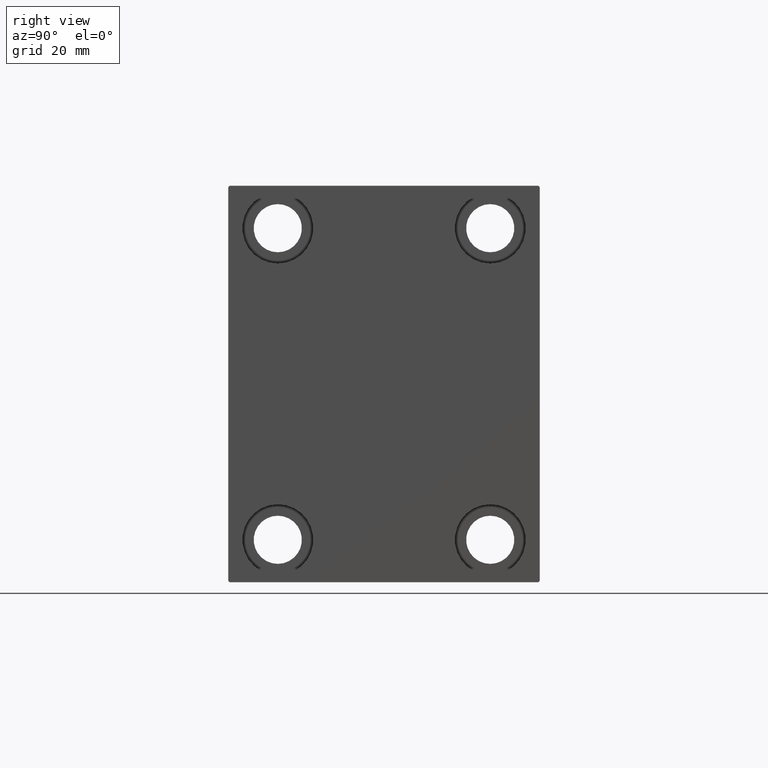
[diagram: clean part render]
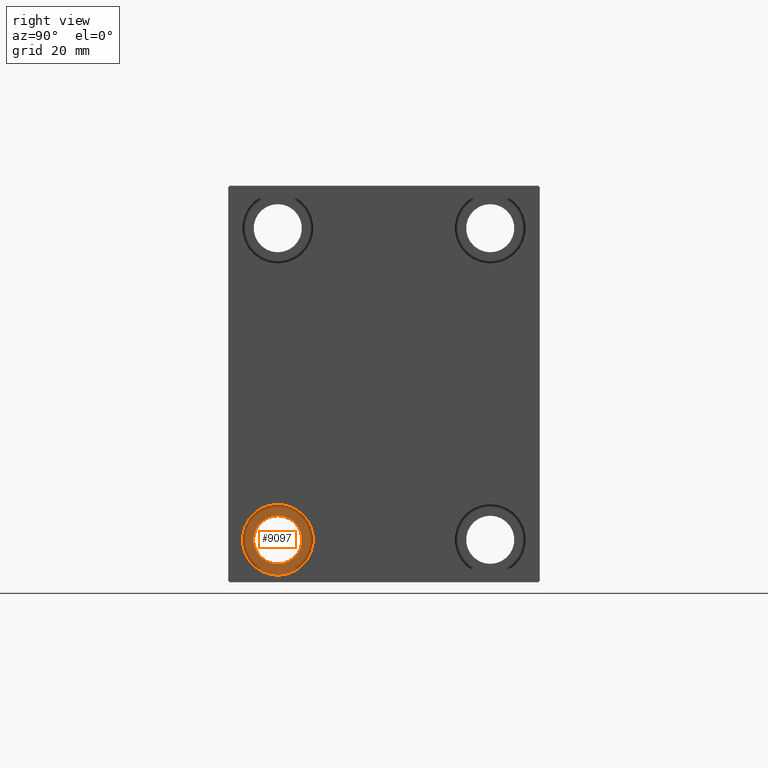
[diagram: same view with one face highlighted and labeled with its STEP entity id]
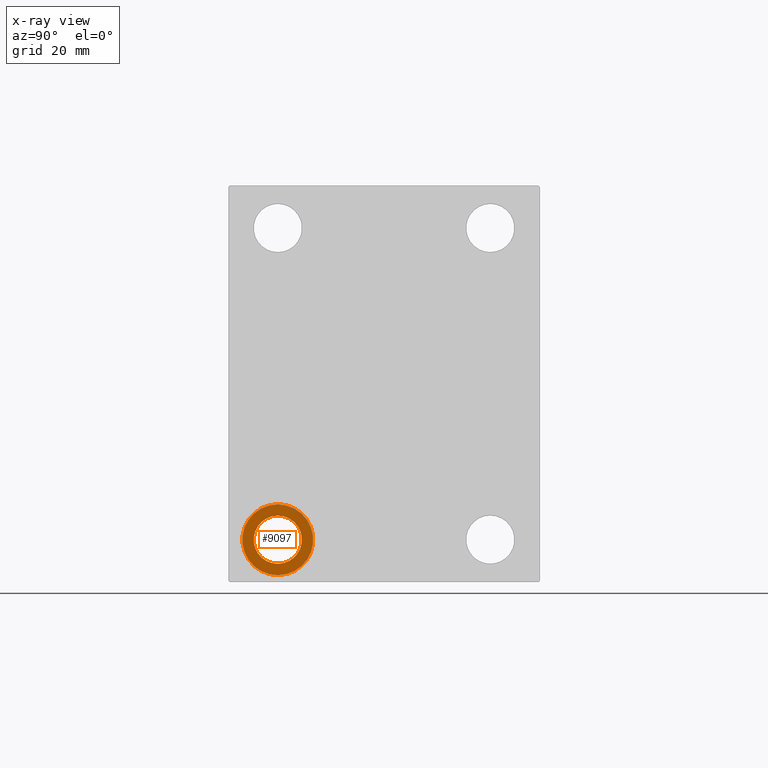
[diagram: x-ray of the same camera — body ghosted, the highlighted face saturated]
A machine part, right view. The second image highlights one B-rep face of the part: STEP entity #9097.
The next image is the same camera in x-ray: the body ghosted, the highlighted face saturated — about 0% of this face is hidden behind the body in this view.
In plain terms, the highlighted planar face has unit normal (1, 0, 0).
Its self-contained STEP definition (entity closure, byte-faithful):
#1574 = ORIENTED_EDGE ( 'NONE', *, *, #9946, .T. ) ;
#3081 = CARTESIAN_POINT ( 'NONE',  ( 155.9999999999999716, 0.000000000000000000, 0.000000000000000000 ) ) ;
#3209 = CIRCLE ( 'NONE', #5329, 8.499999999999992895 ) ;
#5024 = DIRECTION ( 'NONE',  ( 0.000000000000000000, 0.000000000000000000, -1.000000000000000000 ) ) ;
#5170 = VERTEX_POINT ( 'NONE', #38046 ) ;
#5329 = AXIS2_PLACEMENT_3D ( 'NONE', #24376, #41303, #37093 ) ;
#6526 = VERTEX_POINT ( 'NONE', #40192 ) ;
#7411 = AXIS2_PLACEMENT_3D ( 'NONE', #32230, #8159, #5024 ) ;
#8159 = DIRECTION ( 'NONE',  ( -1.000000000000000000, -0.000000000000000000, -0.000000000000000000 ) ) ;
#9097 = ADVANCED_FACE ( 'NONE', ( #36972, #20021 ), #27384, .T. ) ;
#9946 = EDGE_CURVE ( 'NONE', #5170, #29806, #18104, .T. ) ;
#10017 = ORIENTED_EDGE ( 'NONE', *, *, #35030, .F. ) ;
#11965 = EDGE_CURVE ( 'NONE', #29806, #5170, #3209, .T. ) ;
#13315 = EDGE_LOOP ( 'NONE', ( #10017, #16978 ) ) ;
#14272 = AXIS2_PLACEMENT_3D ( 'NONE', #31836, #24713, #28489 ) ;
#16664 = AXIS2_PLACEMENT_3D ( 'NONE', #3081, #40971, #24045 ) ;
#16734 = EDGE_CURVE ( 'NONE', #6526, #37740, #23976, .T. ) ;
#16978 = ORIENTED_EDGE ( 'NONE', *, *, #16734, .F. ) ;
#18104 = CIRCLE ( 'NONE', #7411, 8.499999999999992895 ) ;
#20021 = FACE_BOUND ( 'NONE', #31047, .T. ) ;
#23817 = CARTESIAN_POINT ( 'NONE',  ( 155.9999999999999716, -37.50000000000002132, -54.99999999999999289 ) ) ;
#23976 = CIRCLE ( 'NONE', #29652, 12.49999999999999645 ) ;
#24045 = DIRECTION ( 'NONE',  ( 0.000000000000000000, 0.000000000000000000, 1.000000000000000000 ) ) ;
#24376 = CARTESIAN_POINT ( 'NONE',  ( 155.9999999999999716, -37.50000000000002132, -54.99999999999999289 ) ) ;
#24713 = DIRECTION ( 'NONE',  ( -1.000000000000000000, -0.000000000000000000, -0.000000000000000000 ) ) ;
#25348 = ORIENTED_EDGE ( 'NONE', *, *, #11965, .T. ) ;
#26931 = DIRECTION ( 'NONE',  ( 0.000000000000000000, 0.000000000000000000, 1.000000000000000000 ) ) ;
#27384 = PLANE ( 'NONE',  #16664 ) ;
#28489 = DIRECTION ( 'NONE',  ( 0.000000000000000000, 0.000000000000000000, 1.000000000000000000 ) ) ;
#29652 = AXIS2_PLACEMENT_3D ( 'NONE', #23817, #34287, #26931 ) ;
#29806 = VERTEX_POINT ( 'NONE', #31816 ) ;
#31047 = EDGE_LOOP ( 'NONE', ( #1574, #25348 ) ) ;
#31816 = CARTESIAN_POINT ( 'NONE',  ( 155.9999999999999716, -37.50000000000002132, -63.49999999999998579 ) ) ;
#31836 = CARTESIAN_POINT ( 'NONE',  ( 155.9999999999999716, -37.50000000000002132, -54.99999999999999289 ) ) ;
#32230 = CARTESIAN_POINT ( 'NONE',  ( 155.9999999999999716, -37.50000000000002132, -54.99999999999999289 ) ) ;
#34287 = DIRECTION ( 'NONE',  ( -1.000000000000000000, -0.000000000000000000, -0.000000000000000000 ) ) ;
#35030 = EDGE_CURVE ( 'NONE', #37740, #6526, #39147, .T. ) ;
#36972 = FACE_OUTER_BOUND ( 'NONE', #13315, .T. ) ;
#37093 = DIRECTION ( 'NONE',  ( 0.000000000000000000, 0.000000000000000000, -1.000000000000000000 ) ) ;
#37740 = VERTEX_POINT ( 'NONE', #43872 ) ;
#38046 = CARTESIAN_POINT ( 'NONE',  ( 155.9999999999999716, -37.50000000000002132, -46.50000000000000000 ) ) ;
#39147 = CIRCLE ( 'NONE', #14272, 12.49999999999999645 ) ;
#40192 = CARTESIAN_POINT ( 'NONE',  ( 155.9999999999999716, -37.50000000000002132, -42.49999999999999289 ) ) ;
#40971 = DIRECTION ( 'NONE',  ( 1.000000000000000000, 0.000000000000000000, -0.000000000000000000 ) ) ;
#41303 = DIRECTION ( 'NONE',  ( -1.000000000000000000, -0.000000000000000000, -0.000000000000000000 ) ) ;
#43872 = CARTESIAN_POINT ( 'NONE',  ( 155.9999999999999716, -37.50000000000002132, -67.49999999999998579 ) ) ;